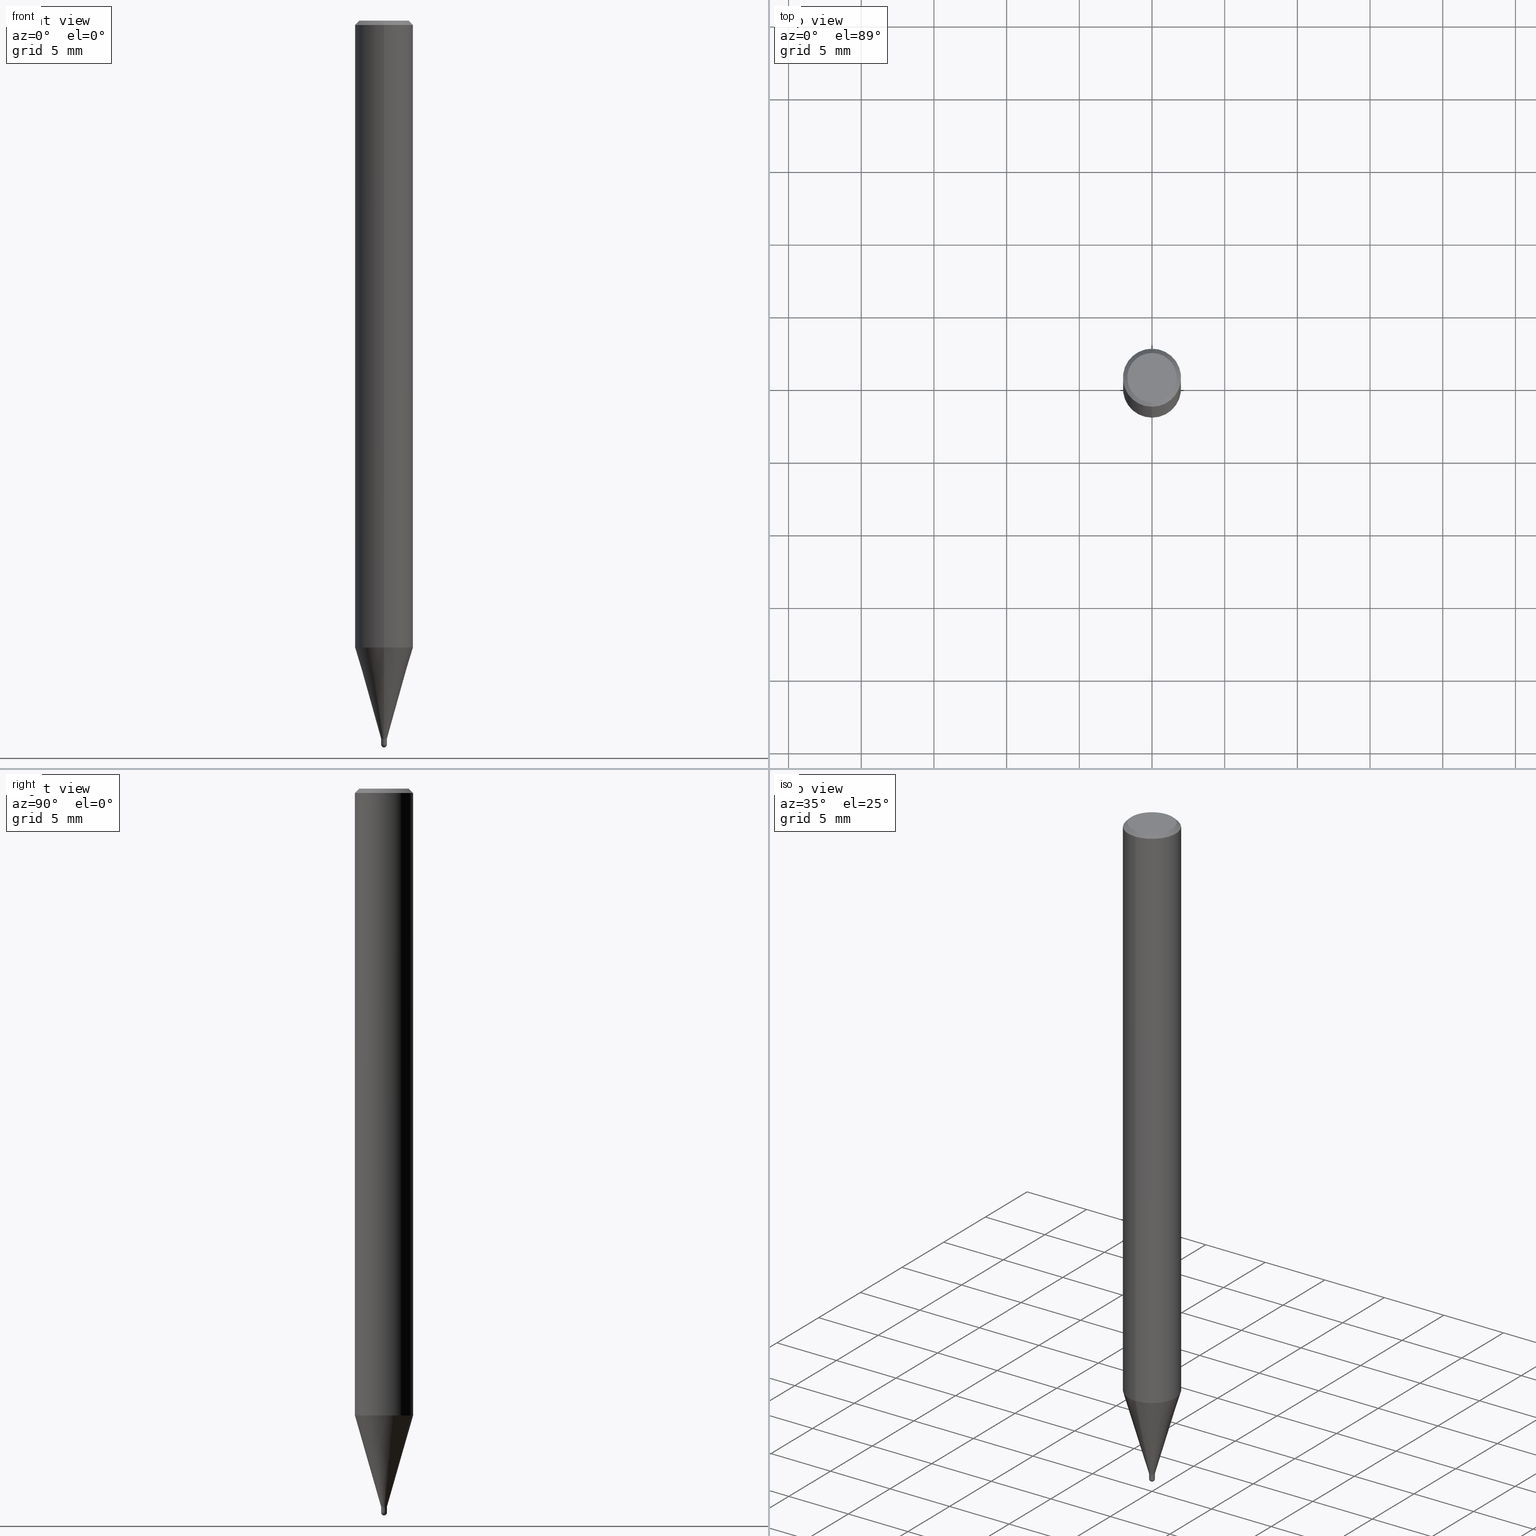
[diagram: canonical four-view strip — front | top / right | iso, engineering-drawing reading convention]
A machine part, canonical four-view strip (front | top / right | iso — engineering-drawing reading convention). The complete STEP part file that produces these views, byte-faithful:
ISO-10303-21;
HEADER;
FILE_DESCRIPTION(('no description'),'unknown implementation level');
FILE_NAME('HSB2004-0060-Huellk.stp','  ',('CIMSOURCE GmbH'),('CADClick - KiM GmbH - www.kimweb.de'),'unknown preprocess','ACIS','unknown authorization');
FILE_SCHEMA(('automotive_design'));
ENDSEC;
DATA;
#1=MECHANICAL_DESIGN_GEOMETRIC_PRESENTATION_REPRESENTATION(' ',(#14,#15,#16,#17,#18,#19,#20,#21,#22,#23,#24,#25,#26,#27,#28,#29,#30,#31,#32,#33,#34,#35,#36,#37,#38,#39,#40,#41,#42,#43,#44,#45,#46,#47,#48,#49,#50,#51,#52,#53,#54,#55,#56,#57,#58,#59,#60,#61,#62,#63,#64,#65,#66),#10);
#2=PRODUCT_DEFINITION_CONTEXT('',#67,'design');
#3=APPLICATION_PROTOCOL_DEFINITION('INTERNATIONAL STANDARD','automotive_design',1994,#67);
#4=PRODUCT_CATEGORY_RELATIONSHIP('NONE','NONE',#68,#69);
#5=SHAPE_DEFINITION_REPRESENTATION(#70,#71);
#6=PRODUCT_DEFINITION_CONTEXT('',#72,'design');
#7=APPLICATION_PROTOCOL_DEFINITION('INTERNATIONAL STANDARD','automotive_design',1994,#72);
#8=PRODUCT_CATEGORY_RELATIONSHIP('NONE','NONE',#73,#74);
#9=SHAPE_DEFINITION_REPRESENTATION(#75,#76);
#10= (GEOMETRIC_REPRESENTATION_CONTEXT(3)GLOBAL_UNCERTAINTY_ASSIGNED_CONTEXT((#79))GLOBAL_UNIT_ASSIGNED_CONTEXT((#81,#82,#83))REPRESENTATION_CONTEXT('NONE','WORKSPACE'));
#14=STYLED_ITEM('',(#85),#86);
#15=STYLED_ITEM('',(#87),#88);
#16=STYLED_ITEM('',(#89),#90);
#17=STYLED_ITEM('',(#91),#92);
#18=STYLED_ITEM('',(#93),#94);
#19=STYLED_ITEM('',(#95),#96);
#20=STYLED_ITEM('',(#97),#98);
#21=STYLED_ITEM('',(#99),#100);
#22=STYLED_ITEM('',(#101),#102);
#23=STYLED_ITEM('',(#103),#104);
#24=STYLED_ITEM('',(#105),#106);
#25=STYLED_ITEM('',(#107),#108);
#26=STYLED_ITEM('',(#109),#110);
#27=STYLED_ITEM('',(#111),#112);
#28=STYLED_ITEM('',(#113),#114);
#29=STYLED_ITEM('',(#115),#116);
#30=STYLED_ITEM('',(#117),#118);
#31=STYLED_ITEM('',(#119),#120);
#32=STYLED_ITEM('',(#121),#122);
#33=STYLED_ITEM('',(#123),#124);
#34=STYLED_ITEM('',(#125),#126);
#35=STYLED_ITEM('',(#127),#128);
#36=STYLED_ITEM('',(#129),#130);
#37=STYLED_ITEM('',(#131),#132);
#38=STYLED_ITEM('',(#133),#134);
#39=STYLED_ITEM('',(#135),#136);
#40=STYLED_ITEM('',(#137),#138);
#41=STYLED_ITEM('',(#139),#140);
#42=STYLED_ITEM('',(#141),#142);
#43=STYLED_ITEM('',(#143),#144);
#44=STYLED_ITEM('',(#145),#146);
#45=STYLED_ITEM('',(#147),#148);
#46=STYLED_ITEM('',(#149),#150);
#47=STYLED_ITEM('',(#151),#152);
#48=STYLED_ITEM('',(#153),#154);
#49=STYLED_ITEM('',(#155),#156);
#50=STYLED_ITEM('',(#157),#158);
#51=STYLED_ITEM('',(#159),#160);
#52=STYLED_ITEM('',(#161),#162);
#53=STYLED_ITEM('',(#163),#164);
#54=STYLED_ITEM('',(#165),#166);
#55=STYLED_ITEM('',(#167),#168);
#56=STYLED_ITEM('',(#169),#170);
#57=STYLED_ITEM('',(#171),#172);
#58=STYLED_ITEM('',(#173),#174);
#59=STYLED_ITEM('',(#175),#176);
#60=STYLED_ITEM('',(#177),#178);
#61=STYLED_ITEM('',(#179),#180);
#62=STYLED_ITEM('',(#181),#182);
#63=STYLED_ITEM('',(#183),#184);
#64=STYLED_ITEM('',(#185),#186);
#65=STYLED_ITEM('',(#187),#188);
#66=STYLED_ITEM('',(#189),#190);
#67=APPLICATION_CONTEXT(' ');
#68=PRODUCT_CATEGORY('part','NONE');
#69=PRODUCT_RELATED_PRODUCT_CATEGORY('detail',' ',(#191));
#70=PRODUCT_DEFINITION_SHAPE('NONE','NONE',#192);
#71=ADVANCED_BREP_SHAPE_REPRESENTATION('1',(#154,#193),#10);
#72=APPLICATION_CONTEXT(' ');
#73=PRODUCT_CATEGORY('part','NONE');
#74=PRODUCT_RELATED_PRODUCT_CATEGORY('detail',' ',(#194));
#75=PRODUCT_DEFINITION_SHAPE('NONE','NONE',#195);
#76=ADVANCED_BREP_SHAPE_REPRESENTATION('2',(#184,#196),#10);
#79=UNCERTAINTY_MEASURE_WITH_UNIT(LENGTH_MEASURE(1.0E-006),#81,'','');
#81= (CONVERSION_BASED_UNIT('MILLIMETRE',#199)LENGTH_UNIT()NAMED_UNIT(#202));
#82= (NAMED_UNIT(#204)PLANE_ANGLE_UNIT()SI_UNIT($,.RADIAN.));
#83= (NAMED_UNIT(#204)SOLID_ANGLE_UNIT()SI_UNIT($,.STERADIAN.));
#85=PRESENTATION_STYLE_ASSIGNMENT((#210));
#86=VERTEX_POINT('',#211);
#87=PRESENTATION_STYLE_ASSIGNMENT((#212));
#88=EDGE_CURVE('',#86,#114,#213,.T.);
#89=PRESENTATION_STYLE_ASSIGNMENT((#214));
#90=EDGE_CURVE('',#164,#134,#215,.T.);
#91=PRESENTATION_STYLE_ASSIGNMENT((#216));
#92=EDGE_CURVE('',#164,#122,#217,.T.);
#93=PRESENTATION_STYLE_ASSIGNMENT((#218));
#94=EDGE_CURVE('',#86,#158,#219,.T.);
#95=PRESENTATION_STYLE_ASSIGNMENT((#220));
#96=EDGE_CURVE('',#152,#150,#221,.T.);
#97=PRESENTATION_STYLE_ASSIGNMENT((#222));
#98=VERTEX_POINT('',#223);
#99=PRESENTATION_STYLE_ASSIGNMENT((#224));
#100=EDGE_CURVE('',#98,#122,#225,.T.);
#101=PRESENTATION_STYLE_ASSIGNMENT((#226));
#102=EDGE_CURVE('',#180,#114,#227,.T.);
#103=PRESENTATION_STYLE_ASSIGNMENT((#228));
#104=ADVANCED_FACE('',(#229),#230,.T.);
#105=PRESENTATION_STYLE_ASSIGNMENT((#231));
#106=EDGE_CURVE('',#180,#158,#232,.T.);
#107=PRESENTATION_STYLE_ASSIGNMENT((#233));
#108=EDGE_CURVE('',#152,#150,#234,.T.);
#109=PRESENTATION_STYLE_ASSIGNMENT((#235));
#110=EDGE_CURVE('',#166,#150,#236,.T.);
#111=PRESENTATION_STYLE_ASSIGNMENT((#237));
#112=ADVANCED_FACE('',(#238),#239,.T.);
#113=PRESENTATION_STYLE_ASSIGNMENT((#240));
#114=VERTEX_POINT('',#241);
#115=PRESENTATION_STYLE_ASSIGNMENT((#242));
#116=VERTEX_POINT('',#243);
#117=PRESENTATION_STYLE_ASSIGNMENT((#244));
#118=ADVANCED_FACE('',(#245),#246,.T.);
#119=PRESENTATION_STYLE_ASSIGNMENT((#247));
#120=EDGE_CURVE('',#98,#134,#248,.T.);
#121=PRESENTATION_STYLE_ASSIGNMENT((#249));
#122=VERTEX_POINT('',#250);
#123=PRESENTATION_STYLE_ASSIGNMENT((#251));
#124=ADVANCED_FACE('',(#252),#253,.T.);
#125=PRESENTATION_STYLE_ASSIGNMENT((#254));
#126=EDGE_CURVE('',#174,#164,#255,.T.);
#127=PRESENTATION_STYLE_ASSIGNMENT((#256));
#128=EDGE_CURVE('',#122,#170,#257,.T.);
#129=PRESENTATION_STYLE_ASSIGNMENT((#258));
#130=EDGE_CURVE('',#122,#164,#259,.T.);
#131=PRESENTATION_STYLE_ASSIGNMENT((#260));
#132=EDGE_CURVE('',#158,#86,#261,.T.);
#133=PRESENTATION_STYLE_ASSIGNMENT((#262));
#134=VERTEX_POINT('',#263);
#135=PRESENTATION_STYLE_ASSIGNMENT((#264));
#136=ADVANCED_FACE('',(#265,#266),#267,.T.);
#137=PRESENTATION_STYLE_ASSIGNMENT((#268));
#138=ADVANCED_FACE('',(#269),#270,.T.);
#139=PRESENTATION_STYLE_ASSIGNMENT((#271));
#140=ADVANCED_FACE('',(#272),#273,.T.);
#141=PRESENTATION_STYLE_ASSIGNMENT((#274));
#142=ADVANCED_FACE('',(#275),#276,.T.);
#143=PRESENTATION_STYLE_ASSIGNMENT((#277));
#144=EDGE_CURVE('',#166,#116,#278,.T.);
#145=PRESENTATION_STYLE_ASSIGNMENT((#279));
#146=EDGE_CURVE('',#116,#166,#280,.T.);
#147=PRESENTATION_STYLE_ASSIGNMENT((#281));
#148=ADVANCED_FACE('',(#282),#283,.T.);
#149=PRESENTATION_STYLE_ASSIGNMENT((#284));
#150=VERTEX_POINT('',#285);
#151=PRESENTATION_STYLE_ASSIGNMENT((#286));
#152=VERTEX_POINT('',#287);
#153=PRESENTATION_STYLE_ASSIGNMENT((#288));
#154=MANIFOLD_SOLID_BREP('1',#289);
#155=PRESENTATION_STYLE_ASSIGNMENT((#290));
#156=ADVANCED_FACE('',(#291),#292,.T.);
#157=PRESENTATION_STYLE_ASSIGNMENT((#293));
#158=VERTEX_POINT('',#294);
#159=PRESENTATION_STYLE_ASSIGNMENT((#295));
#160=ADVANCED_FACE('',(#296),#297,.T.);
#161=PRESENTATION_STYLE_ASSIGNMENT((#298));
#162=EDGE_CURVE('',#174,#170,#299,.T.);
#163=PRESENTATION_STYLE_ASSIGNMENT((#300));
#164=VERTEX_POINT('',#301);
#165=PRESENTATION_STYLE_ASSIGNMENT((#302));
#166=VERTEX_POINT('',#303);
#167=PRESENTATION_STYLE_ASSIGNMENT((#304));
#168=EDGE_CURVE('',#152,#116,#305,.T.);
#169=PRESENTATION_STYLE_ASSIGNMENT((#306));
#170=VERTEX_POINT('',#307);
#171=PRESENTATION_STYLE_ASSIGNMENT((#308));
#172=ADVANCED_FACE('',(#309),#310,.T.);
#173=PRESENTATION_STYLE_ASSIGNMENT((#311));
#174=VERTEX_POINT('',#312);
#175=PRESENTATION_STYLE_ASSIGNMENT((#313));
#176=ADVANCED_FACE('',(#314),#315,.T.);
#177=PRESENTATION_STYLE_ASSIGNMENT((#316));
#178=ADVANCED_FACE('',(#317),#318,.T.);
#179=PRESENTATION_STYLE_ASSIGNMENT((#319));
#180=VERTEX_POINT('',#320);
#181=PRESENTATION_STYLE_ASSIGNMENT((#321));
#182=EDGE_CURVE('',#134,#98,#322,.T.);
#183=PRESENTATION_STYLE_ASSIGNMENT((#323));
#184=MANIFOLD_SOLID_BREP('2',#324);
#185=PRESENTATION_STYLE_ASSIGNMENT((#325));
#186=EDGE_CURVE('',#114,#180,#326,.T.);
#187=PRESENTATION_STYLE_ASSIGNMENT((#327));
#188=EDGE_CURVE('',#170,#174,#328,.T.);
#189=PRESENTATION_STYLE_ASSIGNMENT((#329));
#190=EDGE_CURVE('',#150,#152,#330,.T.);
#191=PRODUCT('1','1','PART-1-DESC',(#331));
#192=PRODUCT_DEFINITION('NONE','NONE',#332,#2);
#193=AXIS2_PLACEMENT_3D('',#333,#334,#335);
#194=PRODUCT('2','2','PART-2-DESC',(#336));
#195=PRODUCT_DEFINITION('NONE','NONE',#337,#6);
#196=AXIS2_PLACEMENT_3D('',#338,#339,#340);
#199=LENGTH_MEASURE_WITH_UNIT(LENGTH_MEASURE(1.0),#341);
#202=DIMENSIONAL_EXPONENTS(1.0,0.0,0.0,0.0,0.0,0.0,0.0);
#204=DIMENSIONAL_EXPONENTS(0.0,0.0,0.0,0.0,0.0,0.0,0.0);
#210=POINT_STYLE(' ',#342,POSITIVE_LENGTH_MEASURE(1.0E-006),#343);
#211=CARTESIAN_POINT('',(2.44860040446785E-017,-0.19995,-49.4));
#212=CURVE_STYLE('',#344,POSITIVE_LENGTH_MEASURE(1.0E-006),#345);
#213=LINE('',#346,#347);
#214=CURVE_STYLE('',#348,POSITIVE_LENGTH_MEASURE(1.0E-006),#349);
#215=LINE('',#350,#351);
#216=CURVE_STYLE('',#352,POSITIVE_LENGTH_MEASURE(1.0E-006),#353);
#217=CIRCLE('',#354,2.0);
#218=CURVE_STYLE('',#355,POSITIVE_LENGTH_MEASURE(1.0E-006),#356);
#219=CIRCLE('',#357,0.19995);
#220=CURVE_STYLE('',#358,POSITIVE_LENGTH_MEASURE(1.0E-006),#359);
#221=CIRCLE('',#360,0.200000000000001);
#222=POINT_STYLE(' ',#361,POSITIVE_LENGTH_MEASURE(1.0E-006),#362);
#223=CARTESIAN_POINT('',(2.44921270764475E-016,-2.0,-43.123));
#224=CURVE_STYLE('',#363,POSITIVE_LENGTH_MEASURE(1.0E-006),#364);
#225=LINE('',#365,#366);
#226=CURVE_STYLE('',#367,POSITIVE_LENGTH_MEASURE(1.0E-006),#368);
#227=CIRCLE('',#369,1.99995);
#228=SURFACE_STYLE_USAGE(.BOTH.,#370);
#229=FACE_OUTER_BOUND('',#371,.T.);
#230=CONICAL_SURFACE('',#372,0.19995,0.000249999994791709);
#231=CURVE_STYLE('',#373,POSITIVE_LENGTH_MEASURE(1.0E-006),#374);
#232=LINE('',#375,#376);
#233=CURVE_STYLE('',#377,POSITIVE_LENGTH_MEASURE(1.0E-006),#378);
#234=CIRCLE('',#379,0.2);
#235=CURVE_STYLE('',#380,POSITIVE_LENGTH_MEASURE(1.0E-006),#381);
#236=LINE('',#382,#383);
#237=SURFACE_STYLE_USAGE(.BOTH.,#384);
#238=FACE_OUTER_BOUND('',#385,.T.);
#239=CYLINDRICAL_SURFACE('',#386,2.0);
#240=POINT_STYLE(' ',#387,POSITIVE_LENGTH_MEASURE(1.0E-006),#388);
#241=CARTESIAN_POINT('',(2.44915147732706E-016,-1.99995,-43.123));
#242=POINT_STYLE(' ',#389,POSITIVE_LENGTH_MEASURE(1.0E-006),#390);
#243=CARTESIAN_POINT('',(2.44798810129093E-017,-0.1999,-49.4));
#244=SURFACE_STYLE_USAGE(.BOTH.,#391);
#245=FACE_OUTER_BOUND('',#392,.T.);
#246=PLANE('',#393);
#247=CURVE_STYLE('',#394,POSITIVE_LENGTH_MEASURE(1.0E-006),#395);
#248=CIRCLE('',#396,2.0);
#249=POINT_STYLE(' ',#397,POSITIVE_LENGTH_MEASURE(1.0E-006),#398);
#250=CARTESIAN_POINT('',(2.44921270764475E-016,-2.0,-0.299999999999997));
#251=SURFACE_STYLE_USAGE(.BOTH.,#399);
#252=FACE_OUTER_BOUND('',#400,.T.);
#253=SPHERICAL_SURFACE('',#401,0.200000000000001);
#254=CURVE_STYLE('',#402,POSITIVE_LENGTH_MEASURE(1.0E-006),#403);
#255=LINE('',#404,#405);
#256=CURVE_STYLE('',#406,POSITIVE_LENGTH_MEASURE(1.0E-006),#407);
#257=LINE('',#408,#409);
#258=CURVE_STYLE('',#410,POSITIVE_LENGTH_MEASURE(1.0E-006),#411);
#259=CIRCLE('',#412,2.0);
#260=CURVE_STYLE('',#413,POSITIVE_LENGTH_MEASURE(1.0E-006),#414);
#261=CIRCLE('',#415,0.19995);
#262=POINT_STYLE(' ',#416,POSITIVE_LENGTH_MEASURE(1.0E-006),#417);
#263=CARTESIAN_POINT('',(0.0,2.0,-43.123));
#264=SURFACE_STYLE_USAGE(.BOTH.,#418);
#265=FACE_OUTER_BOUND('',#419,.T.);
#266=FACE_BOUND('',#420,.T.);
#267=PLANE('',#421);
#268=SURFACE_STYLE_USAGE(.BOTH.,#422);
#269=FACE_OUTER_BOUND('',#423,.T.);
#270=PLANE('',#424);
#271=SURFACE_STYLE_USAGE(.BOTH.,#425);
#272=FACE_OUTER_BOUND('',#426,.T.);
#273=CONICAL_SURFACE('',#427,1.85,0.785398163397453);
#274=SURFACE_STYLE_USAGE(.BOTH.,#428);
#275=FACE_OUTER_BOUND('',#429,.T.);
#276=CONICAL_SURFACE('',#430,1.09995,0.279267285283396);
#277=CURVE_STYLE('',#431,POSITIVE_LENGTH_MEASURE(1.0E-006),#432);
#278=CIRCLE('',#433,0.1999);
#279=CURVE_STYLE('',#434,POSITIVE_LENGTH_MEASURE(1.0E-006),#435);
#280=CIRCLE('',#436,0.1999);
#281=SURFACE_STYLE_USAGE(.BOTH.,#437);
#282=FACE_OUTER_BOUND('',#438,.T.);
#283=PLANE('',#439);
#284=POINT_STYLE(' ',#440,POSITIVE_LENGTH_MEASURE(1.0E-006),#441);
#285=CARTESIAN_POINT('',(0.0,0.2,-49.8));
#286=POINT_STYLE(' ',#442,POSITIVE_LENGTH_MEASURE(1.0E-006),#443);
#287=CARTESIAN_POINT('',(2.44921270764476E-017,-0.2,-49.8));
#288=SURFACE_STYLE_USAGE(.BOTH.,#444);
#289=CLOSED_SHELL('',(#172,#156,#176,#136,#138,#140,#112,#142,#148));
#290=SURFACE_STYLE_USAGE(.BOTH.,#445);
#291=FACE_OUTER_BOUND('',#446,.T.);
#292=CYLINDRICAL_SURFACE('',#447,2.0);
#293=POINT_STYLE(' ',#448,POSITIVE_LENGTH_MEASURE(1.0E-006),#449);
#294=CARTESIAN_POINT('',(0.0,0.19995,-49.4));
#295=SURFACE_STYLE_USAGE(.BOTH.,#450);
#296=FACE_OUTER_BOUND('',#451,.T.);
#297=SPHERICAL_SURFACE('',#452,0.200000000000001);
#298=CURVE_STYLE('',#453,POSITIVE_LENGTH_MEASURE(1.0E-006),#454);
#299=CIRCLE('',#455,1.7);
#300=POINT_STYLE(' ',#456,POSITIVE_LENGTH_MEASURE(1.0E-006),#457);
#301=CARTESIAN_POINT('',(0.0,2.0,-0.299999999999997));
#302=POINT_STYLE(' ',#458,POSITIVE_LENGTH_MEASURE(1.0E-006),#459);
#303=CARTESIAN_POINT('',(0.0,0.1999,-49.4));
#304=CURVE_STYLE('',#460,POSITIVE_LENGTH_MEASURE(1.0E-006),#461);
#305=LINE('',#462,#463);
#306=POINT_STYLE(' ',#464,POSITIVE_LENGTH_MEASURE(1.0E-006),#465);
#307=CARTESIAN_POINT('',(2.08183080149804E-016,-1.7,0.0));
#308=SURFACE_STYLE_USAGE(.BOTH.,#466);
#309=FACE_OUTER_BOUND('',#467,.T.);
#310=CONICAL_SURFACE('',#468,1.09995,0.279267285283396);
#311=POINT_STYLE(' ',#469,POSITIVE_LENGTH_MEASURE(1.0E-006),#470);
#312=CARTESIAN_POINT('',(0.0,1.7,0.0));
#313=SURFACE_STYLE_USAGE(.BOTH.,#471);
#314=FACE_OUTER_BOUND('',#472,.T.);
#315=CONICAL_SURFACE('',#473,1.85,0.785398163397453);
#316=SURFACE_STYLE_USAGE(.BOTH.,#474);
#317=FACE_OUTER_BOUND('',#475,.T.);
#318=CONICAL_SURFACE('',#476,0.19995,0.000249999994791709);
#319=POINT_STYLE(' ',#477,POSITIVE_LENGTH_MEASURE(1.0E-006),#478);
#320=CARTESIAN_POINT('',(0.0,1.99995,-43.123));
#321=CURVE_STYLE('',#479,POSITIVE_LENGTH_MEASURE(1.0E-006),#480);
#322=CIRCLE('',#481,2.0);
#323=SURFACE_STYLE_USAGE(.BOTH.,#482);
#324=CLOSED_SHELL('',(#160,#104,#118,#178,#124));
#325=CURVE_STYLE('',#483,POSITIVE_LENGTH_MEASURE(1.0E-006),#484);
#326=CIRCLE('',#485,1.99995);
#327=CURVE_STYLE('',#486,POSITIVE_LENGTH_MEASURE(1.0E-006),#487);
#328=CIRCLE('',#488,1.7);
#329=CURVE_STYLE('',#489,POSITIVE_LENGTH_MEASURE(1.0E-006),#490);
#330=CIRCLE('',#491,0.2);
#331=PRODUCT_CONTEXT('',#67,'mechanical');
#332=PRODUCT_DEFINITION_FORMATION_WITH_SPECIFIED_SOURCE(' ','NONE',#191,.NOT_KNOWN.);
#333=CARTESIAN_POINT('',(0.0,0.0,0.0));
#334=DIRECTION('',(0.0,0.0,1.0));
#335=DIRECTION('',(1.0,0.0,0.0));
#336=PRODUCT_CONTEXT('',#72,'mechanical');
#337=PRODUCT_DEFINITION_FORMATION_WITH_SPECIFIED_SOURCE(' ','NONE',#194,.NOT_KNOWN.);
#338=CARTESIAN_POINT('',(0.0,0.0,0.0));
#339=DIRECTION('',(0.0,0.0,1.0));
#340=DIRECTION('',(1.0,0.0,0.0));
#341= (NAMED_UNIT(#202)LENGTH_UNIT()SI_UNIT(.MILLI.,.METRE.));
#342=PRE_DEFINED_MARKER('');
#343=COLOUR_RGB('',0.498039215803146,0.498039215803146,0.498039215803146);
#344=DRAUGHTING_PRE_DEFINED_CURVE_FONT('continuous');
#345=COLOUR_RGB('',0.498039215803146,0.498039215803146,0.498039215803146);
#346=CARTESIAN_POINT('',(1.34700575888692E-016,-1.09995,-46.2615));
#347=VECTOR('',#493,1.0);
#348=DRAUGHTING_PRE_DEFINED_CURVE_FONT('continuous');
#349=COLOUR_RGB('',0.498039215803146,0.498039215803146,0.498039215803146);
#350=CARTESIAN_POINT('',(-2.44921270764475E-016,2.0,-21.7115));
#351=VECTOR('',#494,1.0);
#352=DRAUGHTING_PRE_DEFINED_CURVE_FONT('continuous');
#353=COLOUR_RGB('',0.498039215803146,0.498039215803146,0.498039215803146);
#354=AXIS2_PLACEMENT_3D('',#495,#496,#497);
#355=DRAUGHTING_PRE_DEFINED_CURVE_FONT('continuous');
#356=COLOUR_RGB('',0.498039215803146,0.498039215803146,0.498039215803146);
#357=AXIS2_PLACEMENT_3D('',#498,#499,#500);
#358=DRAUGHTING_PRE_DEFINED_CURVE_FONT('continuous');
#359=COLOUR_RGB('',0.800000011920929,0.800000011920929,0.800000011920929);
#360=AXIS2_PLACEMENT_3D('',#501,#502,#503);
#361=PRE_DEFINED_MARKER('');
#362=COLOUR_RGB('',0.498039215803146,0.498039215803146,0.498039215803146);
#363=DRAUGHTING_PRE_DEFINED_CURVE_FONT('continuous');
#364=COLOUR_RGB('',0.498039215803146,0.498039215803146,0.498039215803146);
#365=CARTESIAN_POINT('',(2.44921270764475E-016,-2.0,-21.7115));
#366=VECTOR('',#504,1.0);
#367=DRAUGHTING_PRE_DEFINED_CURVE_FONT('continuous');
#368=COLOUR_RGB('',0.498039215803146,0.498039215803146,0.498039215803146);
#369=AXIS2_PLACEMENT_3D('',#505,#506,#507);
#370=SURFACE_SIDE_STYLE('',(#508));
#371=EDGE_LOOP('',(#509,#510,#511,#512));
#372=AXIS2_PLACEMENT_3D('',#513,#514,#515);
#373=DRAUGHTING_PRE_DEFINED_CURVE_FONT('continuous');
#374=COLOUR_RGB('',0.498039215803146,0.498039215803146,0.498039215803146);
#375=CARTESIAN_POINT('',(-1.34700575888692E-016,1.09995,-46.2615));
#376=VECTOR('',#516,1.0);
#377=DRAUGHTING_PRE_DEFINED_CURVE_FONT('continuous');
#378=COLOUR_RGB('',0.800000011920929,0.800000011920929,0.800000011920929);
#379=AXIS2_PLACEMENT_3D('',#517,#518,#519);
#380=DRAUGHTING_PRE_DEFINED_CURVE_FONT('continuous');
#381=COLOUR_RGB('',0.800000011920929,0.800000011920929,0.800000011920929);
#382=CARTESIAN_POINT('',(-2.44860040446784E-017,0.19995,-49.6));
#383=VECTOR('',#520,1.0);
#384=SURFACE_SIDE_STYLE('',(#521));
#385=EDGE_LOOP('',(#522,#523,#524,#525));
#386=AXIS2_PLACEMENT_3D('',#526,#527,#528);
#387=PRE_DEFINED_MARKER('');
#388=COLOUR_RGB('',0.498039215803146,0.498039215803146,0.498039215803146);
#389=PRE_DEFINED_MARKER('');
#390=COLOUR_RGB('',0.800000011920929,0.800000011920929,0.800000011920929);
#391=SURFACE_SIDE_STYLE('',(#529));
#392=EDGE_LOOP('',(#530,#531));
#393=AXIS2_PLACEMENT_3D('',#532,#533,#534);
#394=DRAUGHTING_PRE_DEFINED_CURVE_FONT('continuous');
#395=COLOUR_RGB('',0.498039215803146,0.498039215803146,0.498039215803146);
#396=AXIS2_PLACEMENT_3D('',#535,#536,#537);
#397=PRE_DEFINED_MARKER('');
#398=COLOUR_RGB('',0.498039215803146,0.498039215803146,0.498039215803146);
#399=SURFACE_SIDE_STYLE('',(#538));
#400=EDGE_LOOP('',(#539,#540));
#401=AXIS2_PLACEMENT_3D('',#541,#542,#543);
#402=DRAUGHTING_PRE_DEFINED_CURVE_FONT('continuous');
#403=COLOUR_RGB('',0.498039215803146,0.498039215803146,0.498039215803146);
#404=CARTESIAN_POINT('',(-2.2655217545714E-016,1.85,-0.149999999999999));
#405=VECTOR('',#544,1.0);
#406=DRAUGHTING_PRE_DEFINED_CURVE_FONT('continuous');
#407=COLOUR_RGB('',0.498039215803146,0.498039215803146,0.498039215803146);
#408=CARTESIAN_POINT('',(2.2655217545714E-016,-1.85,-0.149999999999999));
#409=VECTOR('',#545,1.0);
#410=DRAUGHTING_PRE_DEFINED_CURVE_FONT('continuous');
#411=COLOUR_RGB('',0.498039215803146,0.498039215803146,0.498039215803146);
#412=AXIS2_PLACEMENT_3D('',#546,#547,#548);
#413=DRAUGHTING_PRE_DEFINED_CURVE_FONT('continuous');
#414=COLOUR_RGB('',0.498039215803146,0.498039215803146,0.498039215803146);
#415=AXIS2_PLACEMENT_3D('',#549,#550,#551);
#416=PRE_DEFINED_MARKER('');
#417=COLOUR_RGB('',0.498039215803146,0.498039215803146,0.498039215803146);
#418=SURFACE_SIDE_STYLE('',(#552));
#419=EDGE_LOOP('',(#553,#554));
#420=EDGE_LOOP('',(#555,#556));
#421=AXIS2_PLACEMENT_3D('',#557,#558,#559);
#422=SURFACE_SIDE_STYLE('',(#560));
#423=EDGE_LOOP('',(#561,#562));
#424=AXIS2_PLACEMENT_3D('',#563,#564,#565);
#425=SURFACE_SIDE_STYLE('',(#566));
#426=EDGE_LOOP('',(#567,#568,#569,#570));
#427=AXIS2_PLACEMENT_3D('',#571,#572,#573);
#428=SURFACE_SIDE_STYLE('',(#574));
#429=EDGE_LOOP('',(#575,#576,#577,#578));
#430=AXIS2_PLACEMENT_3D('',#579,#580,#581);
#431=DRAUGHTING_PRE_DEFINED_CURVE_FONT('continuous');
#432=COLOUR_RGB('',0.800000011920929,0.800000011920929,0.800000011920929);
#433=AXIS2_PLACEMENT_3D('',#582,#583,#584);
#434=DRAUGHTING_PRE_DEFINED_CURVE_FONT('continuous');
#435=COLOUR_RGB('',0.800000011920929,0.800000011920929,0.800000011920929);
#436=AXIS2_PLACEMENT_3D('',#585,#586,#587);
#437=SURFACE_SIDE_STYLE('',(#588));
#438=EDGE_LOOP('',(#589,#590));
#439=AXIS2_PLACEMENT_3D('',#591,#592,#593);
#440=PRE_DEFINED_MARKER('');
#441=COLOUR_RGB('',0.800000011920929,0.800000011920929,0.800000011920929);
#442=PRE_DEFINED_MARKER('');
#443=COLOUR_RGB('',0.800000011920929,0.800000011920929,0.800000011920929);
#444=SURFACE_SIDE_STYLE('',(#594));
#445=SURFACE_SIDE_STYLE('',(#595));
#446=EDGE_LOOP('',(#596,#597,#598,#599));
#447=AXIS2_PLACEMENT_3D('',#600,#601,#602);
#448=PRE_DEFINED_MARKER('');
#449=COLOUR_RGB('',0.498039215803146,0.498039215803146,0.498039215803146);
#450=SURFACE_SIDE_STYLE('',(#603));
#451=EDGE_LOOP('',(#604,#605));
#452=AXIS2_PLACEMENT_3D('',#606,#607,#608);
#453=DRAUGHTING_PRE_DEFINED_CURVE_FONT('continuous');
#454=COLOUR_RGB('',0.498039215803146,0.498039215803146,0.498039215803146);
#455=AXIS2_PLACEMENT_3D('',#609,#610,#611);
#456=PRE_DEFINED_MARKER('');
#457=COLOUR_RGB('',0.498039215803146,0.498039215803146,0.498039215803146);
#458=PRE_DEFINED_MARKER('');
#459=COLOUR_RGB('',0.800000011920929,0.800000011920929,0.800000011920929);
#460=DRAUGHTING_PRE_DEFINED_CURVE_FONT('continuous');
#461=COLOUR_RGB('',0.800000011920929,0.800000011920929,0.800000011920929);
#462=CARTESIAN_POINT('',(2.44860040446784E-017,-0.19995,-49.6));
#463=VECTOR('',#612,1.0);
#464=PRE_DEFINED_MARKER('');
#465=COLOUR_RGB('',0.498039215803146,0.498039215803146,0.498039215803146);
#466=SURFACE_SIDE_STYLE('',(#613));
#467=EDGE_LOOP('',(#614,#615,#616,#617));
#468=AXIS2_PLACEMENT_3D('',#618,#619,#620);
#469=PRE_DEFINED_MARKER('');
#470=COLOUR_RGB('',0.498039215803146,0.498039215803146,0.498039215803146);
#471=SURFACE_SIDE_STYLE('',(#621));
#472=EDGE_LOOP('',(#622,#623,#624,#625));
#473=AXIS2_PLACEMENT_3D('',#626,#627,#628);
#474=SURFACE_SIDE_STYLE('',(#629));
#475=EDGE_LOOP('',(#630,#631,#632,#633));
#476=AXIS2_PLACEMENT_3D('',#634,#635,#636);
#477=PRE_DEFINED_MARKER('');
#478=COLOUR_RGB('',0.498039215803146,0.498039215803146,0.498039215803146);
#479=DRAUGHTING_PRE_DEFINED_CURVE_FONT('continuous');
#480=COLOUR_RGB('',0.498039215803146,0.498039215803146,0.498039215803146);
#481=AXIS2_PLACEMENT_3D('',#637,#638,#639);
#482=SURFACE_SIDE_STYLE('',(#640));
#483=DRAUGHTING_PRE_DEFINED_CURVE_FONT('continuous');
#484=COLOUR_RGB('',0.498039215803146,0.498039215803146,0.498039215803146);
#485=AXIS2_PLACEMENT_3D('',#641,#642,#643);
#486=DRAUGHTING_PRE_DEFINED_CURVE_FONT('continuous');
#487=COLOUR_RGB('',0.498039215803146,0.498039215803146,0.498039215803146);
#488=AXIS2_PLACEMENT_3D('',#644,#645,#646);
#489=DRAUGHTING_PRE_DEFINED_CURVE_FONT('continuous');
#490=COLOUR_RGB('',0.800000011920929,0.800000011920929,0.800000011920929);
#491=AXIS2_PLACEMENT_3D('',#647,#648,#649);
#493=DIRECTION('',(3.37564449732947E-017,-0.275651394980357,0.961257670162056));
#494=DIRECTION('',(0.0,0.0,-1.0));
#495=CARTESIAN_POINT('',(0.0,0.0,-0.299999999999997));
#496=DIRECTION('',(0.0,0.0,-1.0));
#497=DIRECTION('',(0.0,1.0,0.0));
#498=CARTESIAN_POINT('',(0.0,0.0,-49.4));
#499=DIRECTION('',(0.0,0.0,-1.0));
#500=DIRECTION('',(0.0,1.0,0.0));
#501=CARTESIAN_POINT('',(0.0,0.0,-49.8));
#502=DIRECTION('',(1.0,0.0,1.22460635382236E-016));
#503=DIRECTION('',(-1.22460635382236E-016,0.0,1.0));
#504=DIRECTION('',(-0.0,-0.0,1.0));
#505=CARTESIAN_POINT('',(0.0,0.0,-43.123));
#506=DIRECTION('',(0.0,0.0,-1.0));
#507=DIRECTION('',(0.0,1.0,0.0));
#508=SURFACE_STYLE_FILL_AREA(#650);
#509=ORIENTED_EDGE('',*,*,#110,.F.);
#510=ORIENTED_EDGE('',*,*,#144,.T.);
#511=ORIENTED_EDGE('',*,*,#168,.F.);
#512=ORIENTED_EDGE('',*,*,#190,.F.);
#513=CARTESIAN_POINT('',(0.0,0.0,-49.6));
#514=DIRECTION('',(0.0,-0.0,-1.0));
#515=DIRECTION('',(0.0,1.0,0.0));
#516=DIRECTION('',(3.37564449732947E-017,-0.275651394980357,-0.961257670162056));
#517=CARTESIAN_POINT('',(0.0,0.0,-49.8));
#518=DIRECTION('',(0.0,0.0,-1.0));
#519=DIRECTION('',(0.0,1.0,0.0));
#520=DIRECTION('',(-3.06151578888409E-020,0.000249999992187542,-0.999999968750001));
#521=SURFACE_STYLE_FILL_AREA(#651);
#522=ORIENTED_EDGE('',*,*,#90,.T.);
#523=ORIENTED_EDGE('',*,*,#120,.F.);
#524=ORIENTED_EDGE('',*,*,#100,.T.);
#525=ORIENTED_EDGE('',*,*,#130,.T.);
#526=CARTESIAN_POINT('',(0.0,0.0,-21.7115));
#527=DIRECTION('',(-0.0,-0.0,1.0));
#528=DIRECTION('',(0.0,1.0,0.0));
#529=SURFACE_STYLE_FILL_AREA(#652);
#530=ORIENTED_EDGE('',*,*,#144,.F.);
#531=ORIENTED_EDGE('',*,*,#146,.F.);
#532=CARTESIAN_POINT('',(0.0,0.09995,-49.4));
#533=DIRECTION('',(-0.0,0.0,1.0));
#534=DIRECTION('',(0.0,-1.0,0.0));
#535=CARTESIAN_POINT('',(0.0,0.0,-43.123));
#536=DIRECTION('',(0.0,0.0,-1.0));
#537=DIRECTION('',(0.0,1.0,0.0));
#538=SURFACE_STYLE_FILL_AREA(#653);
#539=ORIENTED_EDGE('',*,*,#96,.T.);
#540=ORIENTED_EDGE('',*,*,#190,.T.);
#541=CARTESIAN_POINT('',(0.0,0.0,-49.8));
#542=DIRECTION('',(0.0,1.0,0.0));
#543=DIRECTION('',(0.0,0.0,-1.0));
#544=DIRECTION('',(-8.6592745707194E-017,0.707106781186551,-0.707106781186544));
#545=DIRECTION('',(-8.6592745707194E-017,0.707106781186551,0.707106781186544));
#546=CARTESIAN_POINT('',(0.0,0.0,-0.299999999999997));
#547=DIRECTION('',(0.0,0.0,-1.0));
#548=DIRECTION('',(0.0,1.0,0.0));
#549=CARTESIAN_POINT('',(0.0,0.0,-49.4));
#550=DIRECTION('',(0.0,0.0,-1.0));
#551=DIRECTION('',(0.0,1.0,0.0));
#552=SURFACE_STYLE_FILL_AREA(#654);
#553=ORIENTED_EDGE('',*,*,#182,.T.);
#554=ORIENTED_EDGE('',*,*,#120,.T.);
#555=ORIENTED_EDGE('',*,*,#102,.F.);
#556=ORIENTED_EDGE('',*,*,#186,.F.);
#557=CARTESIAN_POINT('',(0.0,1.0,-43.123));
#558=DIRECTION('',(0.0,0.0,-1.0));
#559=DIRECTION('',(0.0,1.0,0.0));
#560=SURFACE_STYLE_FILL_AREA(#655);
#561=ORIENTED_EDGE('',*,*,#162,.F.);
#562=ORIENTED_EDGE('',*,*,#188,.F.);
#563=CARTESIAN_POINT('',(0.0,0.85,0.0));
#564=DIRECTION('',(-0.0,0.0,1.0));
#565=DIRECTION('',(0.0,-1.0,0.0));
#566=SURFACE_STYLE_FILL_AREA(#656);
#567=ORIENTED_EDGE('',*,*,#126,.T.);
#568=ORIENTED_EDGE('',*,*,#130,.F.);
#569=ORIENTED_EDGE('',*,*,#128,.T.);
#570=ORIENTED_EDGE('',*,*,#188,.T.);
#571=CARTESIAN_POINT('',(0.0,0.0,-0.149999999999999));
#572=DIRECTION('',(0.0,-0.0,-1.0));
#573=DIRECTION('',(0.0,1.0,0.0));
#574=SURFACE_STYLE_FILL_AREA(#657);
#575=ORIENTED_EDGE('',*,*,#106,.T.);
#576=ORIENTED_EDGE('',*,*,#94,.F.);
#577=ORIENTED_EDGE('',*,*,#88,.T.);
#578=ORIENTED_EDGE('',*,*,#186,.T.);
#579=CARTESIAN_POINT('',(0.0,0.0,-46.2615));
#580=DIRECTION('',(-0.0,-0.0,1.0));
#581=DIRECTION('',(0.0,1.0,0.0));
#582=CARTESIAN_POINT('',(0.0,0.0,-49.4));
#583=DIRECTION('',(0.0,0.0,-1.0));
#584=DIRECTION('',(0.0,1.0,0.0));
#585=CARTESIAN_POINT('',(0.0,0.0,-49.4));
#586=DIRECTION('',(0.0,0.0,-1.0));
#587=DIRECTION('',(0.0,1.0,0.0));
#588=SURFACE_STYLE_FILL_AREA(#658);
#589=ORIENTED_EDGE('',*,*,#132,.T.);
#590=ORIENTED_EDGE('',*,*,#94,.T.);
#591=CARTESIAN_POINT('',(0.0,0.099975,-49.4));
#592=DIRECTION('',(0.0,0.0,-1.0));
#593=DIRECTION('',(0.0,1.0,0.0));
#594=SURFACE_STYLE_FILL_AREA(#659);
#595=SURFACE_STYLE_FILL_AREA(#660);
#596=ORIENTED_EDGE('',*,*,#90,.F.);
#597=ORIENTED_EDGE('',*,*,#92,.T.);
#598=ORIENTED_EDGE('',*,*,#100,.F.);
#599=ORIENTED_EDGE('',*,*,#182,.F.);
#600=CARTESIAN_POINT('',(0.0,0.0,-21.7115));
#601=DIRECTION('',(-0.0,-0.0,1.0));
#602=DIRECTION('',(0.0,1.0,0.0));
#603=SURFACE_STYLE_FILL_AREA(#661);
#604=ORIENTED_EDGE('',*,*,#96,.F.);
#605=ORIENTED_EDGE('',*,*,#108,.T.);
#606=CARTESIAN_POINT('',(0.0,0.0,-49.8));
#607=DIRECTION('',(0.0,1.0,0.0));
#608=DIRECTION('',(0.0,0.0,-1.0));
#609=CARTESIAN_POINT('',(0.0,0.0,0.0));
#610=DIRECTION('',(0.0,0.0,-1.0));
#611=DIRECTION('',(0.0,1.0,0.0));
#612=DIRECTION('',(-3.06151578888409E-020,0.000249999992187542,0.999999968750001));
#613=SURFACE_STYLE_FILL_AREA(#662);
#614=ORIENTED_EDGE('',*,*,#106,.F.);
#615=ORIENTED_EDGE('',*,*,#102,.T.);
#616=ORIENTED_EDGE('',*,*,#88,.F.);
#617=ORIENTED_EDGE('',*,*,#132,.F.);
#618=CARTESIAN_POINT('',(0.0,0.0,-46.2615));
#619=DIRECTION('',(-0.0,-0.0,1.0));
#620=DIRECTION('',(0.0,1.0,0.0));
#621=SURFACE_STYLE_FILL_AREA(#663);
#622=ORIENTED_EDGE('',*,*,#126,.F.);
#623=ORIENTED_EDGE('',*,*,#162,.T.);
#624=ORIENTED_EDGE('',*,*,#128,.F.);
#625=ORIENTED_EDGE('',*,*,#92,.F.);
#626=CARTESIAN_POINT('',(0.0,0.0,-0.149999999999999));
#627=DIRECTION('',(0.0,-0.0,-1.0));
#628=DIRECTION('',(0.0,1.0,0.0));
#629=SURFACE_STYLE_FILL_AREA(#664);
#630=ORIENTED_EDGE('',*,*,#110,.T.);
#631=ORIENTED_EDGE('',*,*,#108,.F.);
#632=ORIENTED_EDGE('',*,*,#168,.T.);
#633=ORIENTED_EDGE('',*,*,#146,.T.);
#634=CARTESIAN_POINT('',(0.0,0.0,-49.6));
#635=DIRECTION('',(0.0,-0.0,-1.0));
#636=DIRECTION('',(0.0,1.0,0.0));
#637=CARTESIAN_POINT('',(0.0,0.0,-43.123));
#638=DIRECTION('',(0.0,0.0,-1.0));
#639=DIRECTION('',(0.0,1.0,0.0));
#640=SURFACE_STYLE_FILL_AREA(#665);
#641=CARTESIAN_POINT('',(0.0,0.0,-43.123));
#642=DIRECTION('',(0.0,0.0,-1.0));
#643=DIRECTION('',(0.0,1.0,0.0));
#644=CARTESIAN_POINT('',(0.0,0.0,0.0));
#645=DIRECTION('',(0.0,0.0,-1.0));
#646=DIRECTION('',(0.0,1.0,0.0));
#647=CARTESIAN_POINT('',(0.0,0.0,-49.8));
#648=DIRECTION('',(0.0,0.0,-1.0));
#649=DIRECTION('',(0.0,1.0,0.0));
#650=FILL_AREA_STYLE('',(#666));
#651=FILL_AREA_STYLE('',(#667));
#652=FILL_AREA_STYLE('',(#668));
#653=FILL_AREA_STYLE('',(#669));
#654=FILL_AREA_STYLE('',(#670));
#655=FILL_AREA_STYLE('',(#671));
#656=FILL_AREA_STYLE('',(#672));
#657=FILL_AREA_STYLE('',(#673));
#658=FILL_AREA_STYLE('',(#674));
#659=FILL_AREA_STYLE('',(#675));
#660=FILL_AREA_STYLE('',(#676));
#661=FILL_AREA_STYLE('',(#677));
#662=FILL_AREA_STYLE('',(#678));
#663=FILL_AREA_STYLE('',(#679));
#664=FILL_AREA_STYLE('',(#680));
#665=FILL_AREA_STYLE('',(#681));
#666=FILL_AREA_STYLE_COLOUR('',#682);
#667=FILL_AREA_STYLE_COLOUR('',#683);
#668=FILL_AREA_STYLE_COLOUR('',#684);
#669=FILL_AREA_STYLE_COLOUR('',#685);
#670=FILL_AREA_STYLE_COLOUR('',#686);
#671=FILL_AREA_STYLE_COLOUR('',#687);
#672=FILL_AREA_STYLE_COLOUR('',#688);
#673=FILL_AREA_STYLE_COLOUR('',#689);
#674=FILL_AREA_STYLE_COLOUR('',#690);
#675=FILL_AREA_STYLE_COLOUR('',#691);
#676=FILL_AREA_STYLE_COLOUR('',#692);
#677=FILL_AREA_STYLE_COLOUR('',#693);
#678=FILL_AREA_STYLE_COLOUR('',#694);
#679=FILL_AREA_STYLE_COLOUR('',#695);
#680=FILL_AREA_STYLE_COLOUR('',#696);
#681=FILL_AREA_STYLE_COLOUR('',#697);
#682=COLOUR_RGB('',0.800000011920929,0.800000011920929,0.800000011920929);
#683=COLOUR_RGB('',0.498039215803146,0.498039215803146,0.498039215803146);
#684=COLOUR_RGB('',0.800000011920929,0.800000011920929,0.800000011920929);
#685=COLOUR_RGB('',0.800000011920929,0.800000011920929,0.800000011920929);
#686=COLOUR_RGB('',0.498039215803146,0.498039215803146,0.498039215803146);
#687=COLOUR_RGB('',0.498039215803146,0.498039215803146,0.498039215803146);
#688=COLOUR_RGB('',0.498039215803146,0.498039215803146,0.498039215803146);
#689=COLOUR_RGB('',0.498039215803146,0.498039215803146,0.498039215803146);
#690=COLOUR_RGB('',0.498039215803146,0.498039215803146,0.498039215803146);
#691=COLOUR_RGB('',0.498039215803146,0.498039215803146,0.498039215803146);
#692=COLOUR_RGB('',0.498039215803146,0.498039215803146,0.498039215803146);
#693=COLOUR_RGB('',0.800000011920929,0.800000011920929,0.800000011920929);
#694=COLOUR_RGB('',0.498039215803146,0.498039215803146,0.498039215803146);
#695=COLOUR_RGB('',0.498039215803146,0.498039215803146,0.498039215803146);
#696=COLOUR_RGB('',0.800000011920929,0.800000011920929,0.800000011920929);
#697=COLOUR_RGB('',0.800000011920929,0.800000011920929,0.800000011920929);
#698=AXIS2_PLACEMENT_3D('PCS',#699,#700,#701);
#699=CARTESIAN_POINT('',(0.0,0.0,0.0));
#700=DIRECTION('',(0.0,0.0,1.0));
#701=DIRECTION('',(1.0,0.0,0.0));
#702=AXIS2_PLACEMENT_3D('CIP',#703,#704,#705);
#703=CARTESIAN_POINT('',(0.0,0.0,-50.0));
#704=DIRECTION('',(0.0,0.0,1.0));
#705=DIRECTION('',(1.0,0.0,0.0));
#706=AXIS2_PLACEMENT_3D('CRP',#707,#708,#709);
#707=CARTESIAN_POINT('',(-0.2,0.0,-50.0));
#708=DIRECTION('',(0.0,0.0,1.0));
#709=DIRECTION('',(1.0,0.0,0.0));
#710=AXIS2_PLACEMENT_3D('MCS',#711,#712,#713);
#711=CARTESIAN_POINT('',(0.0,0.0,-43.123));
#712=DIRECTION('',(0.0,0.0,1.0));
#713=DIRECTION('',(1.0,0.0,0.0));
#714=CONSTRUCTIVE_GEOMETRY_REPRESENTATION_RELATIONSHIP('coordinate systems',$,#71,#715);
#715=CONSTRUCTIVE_GEOMETRY_REPRESENTATION('coordinate systems',(#698,#702,#706,#710),#10);
ENDSEC;
END-ISO-10303-21;
